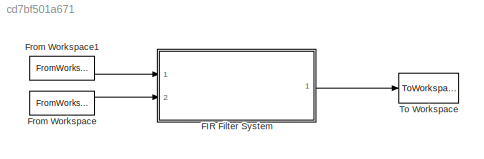
MODEL slx_cd7bf501a671
KIND model
CONFIG AbsTol = auto
CONFIG EnableMultiTasking = off
CONFIG FixedStep = auto
CONFIG InitFcn = FIR_filterTestm;
CONFIG MaxStep = auto
CONFIG MinStep = auto
CONFIG RelTol = 1e-3
CONFIG SampleTimeConstraint = Unconstrained
CONFIG Solver = VariableStepAuto
CONFIG SolverName = VariableStepAuto
CONFIG StartTime = 0.0
CONFIG StopFcn = HPF_Sim = out.HPF_Sim.signals.values(:, 1:FFT_size);\nHPF_Sim = HPF_Sim(3:8, 1:FFT_size);\nHPF_Model = HPF_Model(3:8, 1:FFT_size);\n\nfiltTestStop;
CONFIG StopTime = (nSamp +1)*Ts
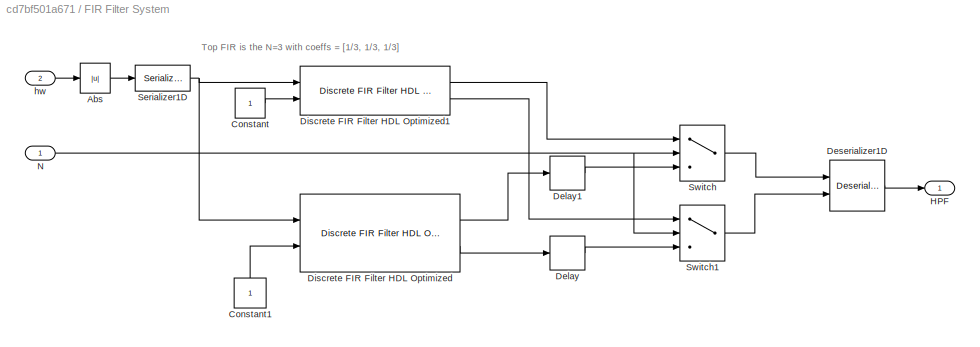
BLOCK [SubSystem] FIR Filter System
  Ports = [2, 1]
  RequestExecContextInheritance = off
BLOCK [Abs] FIR Filter System/Abs
  SaturateOnIntegerOverflow = off
BLOCK [Constant] FIR Filter System/Constant
  OutDataTypeStr = boolean
  SampleTime = Ts
BLOCK [Constant] FIR Filter System/Constant1
  OutDataTypeStr = boolean
  SampleTime = Ts
BLOCK [Delay] FIR Filter System/Delay
  InputPortMap = u0
  Ports = [1, 1]
BLOCK [Delay] FIR Filter System/Delay1
  InputPortMap = u0
  Ports = [1, 1]
BLOCK [Reference] FIR Filter System/Deserializer1D  REF=hdlsllib/HDL Operations/Deserializer1D
  Ports = [2, 1]
  SourceBlock = hdlsllib/HDL Operations/Deserializer1D
  SourceProductBaseCode = SL
  SourceProductName = Simulink
  SourceType = Deserializer1D
BLOCK [Reference] FIR Filter System/Discrete FIR Filter HDL Optimized  REF=dsphdlfiltering/Discrete FIR Filter
HDL Optimized
  Ports = [2, 2]
  SourceBlock = dsphdlfiltering/Discrete FIR Filter\nHDL Optimized
  SourceProductBaseCode = DS
  SourceProductName = DSP System Toolbox
  SourceType = Discrete FIR Filter HDL Optimized
BLOCK [Reference] FIR Filter System/Discrete FIR Filter HDL Optimized1  REF=dsphdlfiltering/Discrete FIR Filter
HDL Optimized
  Ports = [2, 2]
  SourceBlock = dsphdlfiltering/Discrete FIR Filter\nHDL Optimized
  SourceProductBaseCode = DS
  SourceProductName = DSP System Toolbox
  SourceType = Discrete FIR Filter HDL Optimized
BLOCK [Outport] FIR Filter System/HPF
  IconDisplay = Port number
BLOCK [Inport] FIR Filter System/N
  IconDisplay = Port number
BLOCK [Reference] FIR Filter System/Serializer1D  REF=hdlsllib/HDL Operations/Serializer1D
  Ports = [1, 1]
  SourceBlock = hdlsllib/HDL Operations/Serializer1D
  SourceProductBaseCode = SL
  SourceProductName = Simulink
  SourceType = Serializer1D
BLOCK [Switch] FIR Filter System/Switch
  InputSameDT = off
  SaturateOnIntegerOverflow = off
  Threshold = 2
BLOCK [Switch] FIR Filter System/Switch1
  InputSameDT = off
  SaturateOnIntegerOverflow = off
  Threshold = 2
BLOCK [Inport] FIR Filter System/hw
  IconDisplay = Port number
  Port = 2
BLOCK [FromWorkspace] From Workspace
  SampleTime = Ts
  VariableName = hwSim
  ZeroCross = on
BLOCK [FromWorkspace] From Workspace1
  SampleTime = Ts
  VariableName = NSim
  ZeroCross = on
BLOCK [ToWorkspace] To Workspace
  FixptAsFi = on
  MaxDataPoints = inf
  Ports = [1]
  SampleTime = -1
  SaveFormat = Structure With Time
  VariableName = HPF_Sim
ANNOTATION FIR Filter System: Top FIR is the N=3 with coeffs = [1/3, 1/3, 1/3]
LINE FIR Filter System/Abs:1 -> FIR Filter System/Serializer1D:1
LINE FIR Filter System/Constant1:1 -> FIR Filter System/Discrete FIR Filter HDL Optimized:2
LINE FIR Filter System/Constant:1 -> FIR Filter System/Discrete FIR Filter HDL Optimized1:2
LINE FIR Filter System/Delay1:1 -> FIR Filter System/Switch:3
LINE FIR Filter System/Delay:1 -> FIR Filter System/Switch1:3
LINE FIR Filter System/Deserializer1D:1 -> FIR Filter System/HPF:1
LINE FIR Filter System/Discrete FIR Filter HDL Optimized1:1 -> FIR Filter System/Switch:1
LINE FIR Filter System/Discrete FIR Filter HDL Optimized1:2 -> FIR Filter System/Switch1:1
LINE FIR Filter System/Discrete FIR Filter HDL Optimized:1 -> FIR Filter System/Delay1:1
LINE FIR Filter System/Discrete FIR Filter HDL Optimized:2 -> FIR Filter System/Delay:1
NET FIR Filter System/N:1 -> FIR Filter System/Switch1:2, FIR Filter System/Switch:2
NET FIR Filter System/Serializer1D:1 -> FIR Filter System/Discrete FIR Filter HDL Optimized1:1, FIR Filter System/Discrete FIR Filter HDL Optimized:1
LINE FIR Filter System/Switch1:1 -> FIR Filter System/Deserializer1D:2
LINE FIR Filter System/Switch:1 -> FIR Filter System/Deserializer1D:1
LINE FIR Filter System/hw:1 -> FIR Filter System/Abs:1
LINE FIR Filter System:1 -> To Workspace:1
LINE From Workspace1:1 -> FIR Filter System:1
LINE From Workspace:1 -> FIR Filter System:2
note: NET lines group one-source signal fan-out (src -> all destinations, sorted); 1:1 wires keep LINE
